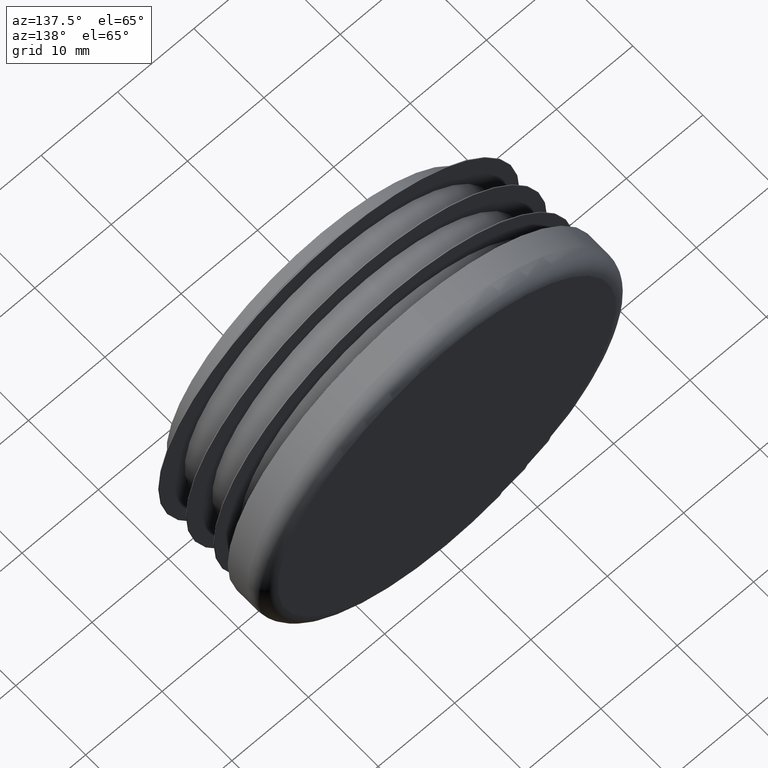
[diagram: clean part render]
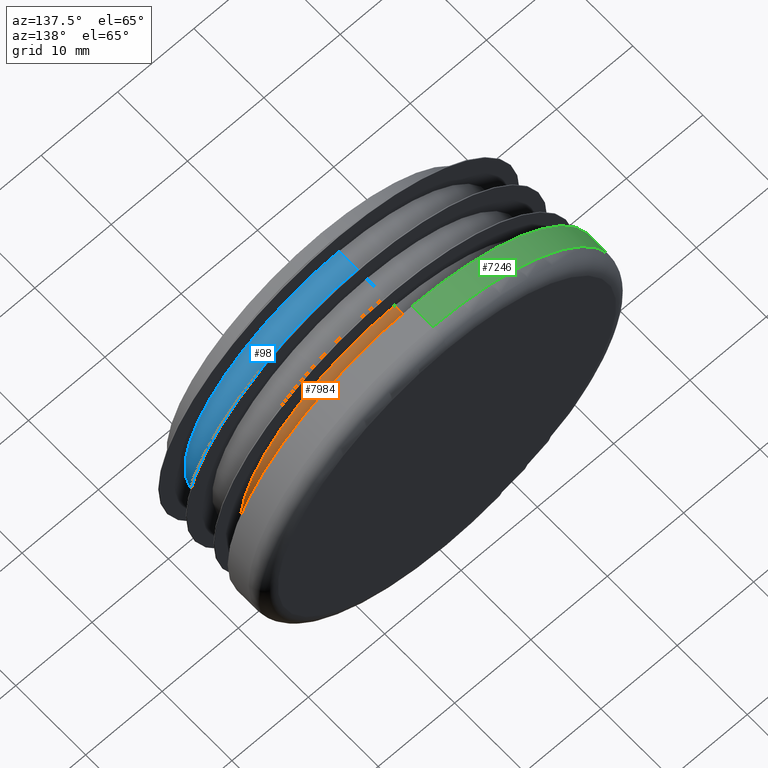
[diagram: same view with three faces highlighted in distinct colors, each labeled with its STEP entity id]
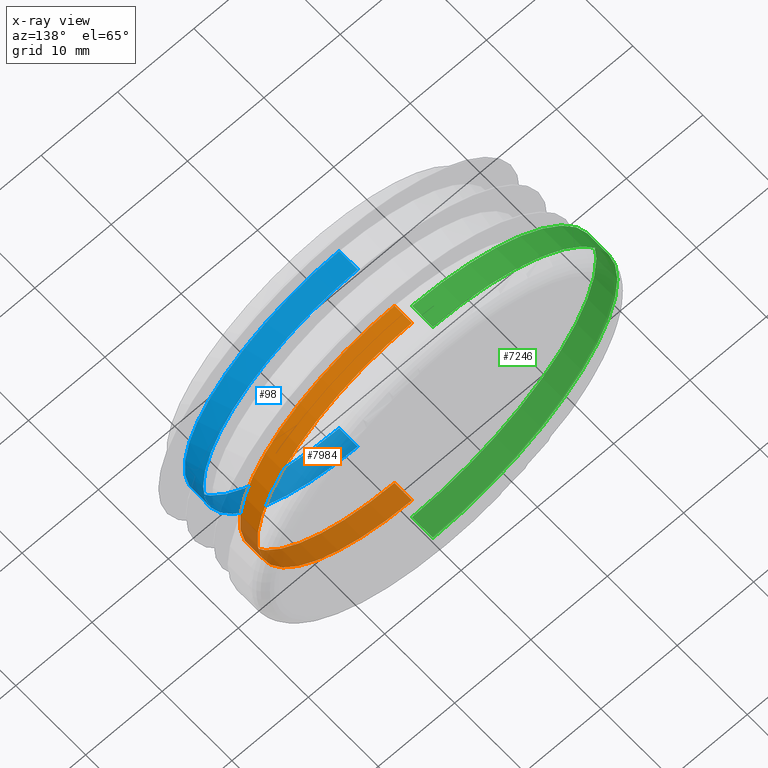
[diagram: x-ray of the same camera — body ghosted, the three highlighted faces saturated]
A machine part, auxiliary view with three faces highlighted in distinct colors.
The next image is the same camera in x-ray (body ghosted, the three faces saturated) — at least one of them is partly hidden behind the body in this view.
Their STEP definitions:

[orange] entity #7984 — the highlighted cylindrical surface (partial cylindrical patch) has radius 20.25 mm, axis along (-0, -1, -0).
#101 = AXIS2_PLACEMENT_3D ( 'NONE', #7416, #2454, #11285 ) ;
#410 = CIRCLE ( 'NONE', #1434, 20.25000000000000355 ) ;
#1434 = AXIS2_PLACEMENT_3D ( 'NONE', #2175, #6080, #6123 ) ;
#1685 = DIRECTION ( 'NONE',  ( 0.000000000000000000, 0.000000000000000000, -1.000000000000000000 ) ) ;
#2175 = CARTESIAN_POINT ( 'NONE',  ( 0.000000000000000000, 10.50000000000024869, 0.000000000000000000 ) ) ;
#2454 = DIRECTION ( 'NONE',  ( -0.000000000000000000, -1.000000000000000000, -0.000000000000000000 ) ) ;
#2685 = ORIENTED_EDGE ( 'NONE', *, *, #8661, .F. ) ;
#2708 = EDGE_CURVE ( 'NONE', #9365, #12247, #7811, .T. ) ;
#3209 = VECTOR ( 'NONE', #10932, 1000.000000000000000 ) ;
#3353 = VERTEX_POINT ( 'NONE', #3434 ) ;
#3434 = CARTESIAN_POINT ( 'NONE',  ( 2.479909768271173995E-15, 10.50000000000024869, 20.25000000000000355 ) ) ;
#4050 = FACE_OUTER_BOUND ( 'NONE', #4310, .T. ) ;
#4086 = ORIENTED_EDGE ( 'NONE', *, *, #2708, .F. ) ;
#4310 = EDGE_LOOP ( 'NONE', ( #10079, #5307, #2685, #4086 ) ) ;
#4395 = CIRCLE ( 'NONE', #101, 20.25000000000000355 ) ;
#4969 = EDGE_CURVE ( 'NONE', #9365, #6703, #4395, .T. ) ;
#5142 = CYLINDRICAL_SURFACE ( 'NONE', #10657, 20.25000000000000355 ) ;
#5307 = ORIENTED_EDGE ( 'NONE', *, *, #11795, .T. ) ;
#6080 = DIRECTION ( 'NONE',  ( 1.047444401652940007E-14, -1.000000000000000000, -0.000000000000000000 ) ) ;
#6123 = DIRECTION ( 'NONE',  ( -1.000000000000000000, -1.045117353428002079E-14, 0.000000000000000000 ) ) ;
#6703 = VERTEX_POINT ( 'NONE', #7364 ) ;
#7364 = CARTESIAN_POINT ( 'NONE',  ( 2.479909768273391089E-15, 12.99999999999999645, 20.25000000000000355 ) ) ;
#7416 = CARTESIAN_POINT ( 'NONE',  ( 0.000000000000000000, 12.99999999999999645, 0.000000000000000000 ) ) ;
#7467 = CARTESIAN_POINT ( 'NONE',  ( 2.479909768273391089E-15, 12.99999999999999467, 20.25000000000000355 ) ) ;
#7538 = DIRECTION ( 'NONE',  ( -0.000000000000000000, -1.000000000000000000, -0.000000000000000000 ) ) ;
#7811 = LINE ( 'NONE', #8003, #3209 ) ;
#7984 = ADVANCED_FACE ( 'NONE', ( #4050 ), #5142, .T. ) ;
#8003 = CARTESIAN_POINT ( 'NONE',  ( 0.000000000000000000, 12.99999999999999467, -20.25000000000000355 ) ) ;
#8661 = EDGE_CURVE ( 'NONE', #12247, #3353, #410, .T. ) ;
#9092 = CARTESIAN_POINT ( 'NONE',  ( -2.216772199859958840E-27, 10.50000000000024869, -20.25000000000000355 ) ) ;
#9365 = VERTEX_POINT ( 'NONE', #11719 ) ;
#9757 = LINE ( 'NONE', #7467, #11856 ) ;
#10079 = ORIENTED_EDGE ( 'NONE', *, *, #4969, .T. ) ;
#10657 = AXIS2_PLACEMENT_3D ( 'NONE', #12428, #7538, #1685 ) ;
#10932 = DIRECTION ( 'NONE',  ( -0.000000000000000000, -1.000000000000000000, -0.000000000000000000 ) ) ;
#11285 = DIRECTION ( 'NONE',  ( 0.000000000000000000, 0.000000000000000000, -1.000000000000000000 ) ) ;
#11719 = CARTESIAN_POINT ( 'NONE',  ( 0.000000000000000000, 12.99999999999999645, -20.25000000000000355 ) ) ;
#11795 = EDGE_CURVE ( 'NONE', #6703, #3353, #9757, .T. ) ;
#11856 = VECTOR ( 'NONE', #12340, 1000.000000000000000 ) ;
#12247 = VERTEX_POINT ( 'NONE', #9092 ) ;
#12340 = DIRECTION ( 'NONE',  ( -0.000000000000000000, -1.000000000000000000, -0.000000000000000000 ) ) ;
#12428 = CARTESIAN_POINT ( 'NONE',  ( 0.000000000000000000, 12.99999999999999467, 0.000000000000000000 ) ) ;

[blue] entity #98 — the highlighted cylindrical surface (partial cylindrical patch) has radius 20.25 mm, axis along (-0, -1, -0).
#35 = CARTESIAN_POINT ( 'NONE',  ( 2.479909768271173995E-15, 2.599999999999786482, 20.25000000000000355 ) ) ;
#92 = CARTESIAN_POINT ( 'NONE',  ( 0.000000000000000000, 12.99999999999999467, 0.000000000000000000 ) ) ;
#98 = ADVANCED_FACE ( 'NONE', ( #1736 ), #4324, .T. ) ;
#348 = CARTESIAN_POINT ( 'NONE',  ( 2.479909768271169262E-15, 5.249999999999983125, 20.25000000000000355 ) ) ;
#457 = VECTOR ( 'NONE', #8158, 1000.000000000000000 ) ;
#696 = EDGE_CURVE ( 'NONE', #11038, #10031, #1100, .T. ) ;
#955 = EDGE_CURVE ( 'NONE', #7314, #1592, #6598, .T. ) ;
#1100 = CIRCLE ( 'NONE', #8448, 20.25000000000000355 ) ;
#1241 = ORIENTED_EDGE ( 'NONE', *, *, #955, .F. ) ;
#1443 = DIRECTION ( 'NONE',  ( -1.000000000000000000, -1.049400621269920216E-14, 0.000000000000000000 ) ) ;
#1592 = VERTEX_POINT ( 'NONE', #35 ) ;
#1736 = FACE_OUTER_BOUND ( 'NONE', #9956, .T. ) ;
#2102 = DIRECTION ( 'NONE',  ( -0.000000000000000000, -1.000000000000000000, -0.000000000000000000 ) ) ;
#2202 = DIRECTION ( 'NONE',  ( 0.000000000000000000, 0.000000000000000000, -1.000000000000000000 ) ) ;
#2232 = CARTESIAN_POINT ( 'NONE',  ( -5.499083108677917680E-14, 5.249999999999983125, 0.000000000000000000 ) ) ;
#2321 = VECTOR ( 'NONE', #9738, 1000.000000000000000 ) ;
#2602 = EDGE_CURVE ( 'NONE', #10031, #7314, #3961, .T. ) ;
#3898 = EDGE_CURVE ( 'NONE', #4237, #1592, #5022, .T. ) ;
#3912 = CARTESIAN_POINT ( 'NONE',  ( 20.24999999999995026, 5.250000000000195399, 2.686068203623716789E-15 ) ) ;
#3961 = LINE ( 'NONE', #11628, #2321 ) ;
#4237 = VERTEX_POINT ( 'NONE', #348 ) ;
#4324 = CYLINDRICAL_SURFACE ( 'NONE', #12563, 20.25000000000000355 ) ;
#5022 = LINE ( 'NONE', #7174, #457 ) ;
#5613 = ORIENTED_EDGE ( 'NONE', *, *, #2602, .F. ) ;
#5932 = ORIENTED_EDGE ( 'NONE', *, *, #3898, .T. ) ;
#6066 = DIRECTION ( 'NONE',  ( -1.000000000000000000, -1.047258987348961069E-14, 0.000000000000000000 ) ) ;
#6295 = CARTESIAN_POINT ( 'NONE',  ( -2.224834271756134857E-27, 5.249999999999983125, -20.25000000000000355 ) ) ;
#6598 = CIRCLE ( 'NONE', #11604, 20.25000000000000355 ) ;
#7019 = CARTESIAN_POINT ( 'NONE',  ( 0.000000000000000000, 2.599999999999786482, 0.000000000000000000 ) ) ;
#7174 = CARTESIAN_POINT ( 'NONE',  ( 2.479909768273391089E-15, 12.99999999999999467, 20.25000000000000355 ) ) ;
#7256 = AXIS2_PLACEMENT_3D ( 'NONE', #2232, #9072, #8119 ) ;
#7314 = VERTEX_POINT ( 'NONE', #11203 ) ;
#7341 = CARTESIAN_POINT ( 'NONE',  ( -5.499083108677917680E-14, 5.249999999999983125, 0.000000000000000000 ) ) ;
#8119 = DIRECTION ( 'NONE',  ( -1.000000000000000000, -1.049400621269920216E-14, 0.000000000000000000 ) ) ;
#8158 = DIRECTION ( 'NONE',  ( -0.000000000000000000, -1.000000000000000000, -0.000000000000000000 ) ) ;
#8244 = DIRECTION ( 'NONE',  ( -1.047444401652940007E-14, 1.000000000000000000, 0.000000000000000000 ) ) ;
#8448 = AXIS2_PLACEMENT_3D ( 'NONE', #7341, #8244, #1443 ) ;
#8769 = ORIENTED_EDGE ( 'NONE', *, *, #9619, .F. ) ;
#9072 = DIRECTION ( 'NONE',  ( -1.047444401652940007E-14, 1.000000000000000000, 0.000000000000000000 ) ) ;
#9619 = EDGE_CURVE ( 'NONE', #4237, #11038, #10185, .T. ) ;
#9738 = DIRECTION ( 'NONE',  ( -0.000000000000000000, -1.000000000000000000, -0.000000000000000000 ) ) ;
#9956 = EDGE_LOOP ( 'NONE', ( #8769, #5932, #1241, #5613, #12404 ) ) ;
#10031 = VERTEX_POINT ( 'NONE', #6295 ) ;
#10063 = DIRECTION ( 'NONE',  ( 1.047444401652940007E-14, -1.000000000000000000, -0.000000000000000000 ) ) ;
#10185 = CIRCLE ( 'NONE', #7256, 20.25000000000000355 ) ;
#11038 = VERTEX_POINT ( 'NONE', #3912 ) ;
#11203 = CARTESIAN_POINT ( 'NONE',  ( -2.216772199859958840E-27, 2.599999999999786482, -20.25000000000000355 ) ) ;
#11604 = AXIS2_PLACEMENT_3D ( 'NONE', #7019, #10063, #6066 ) ;
#11628 = CARTESIAN_POINT ( 'NONE',  ( 0.000000000000000000, 12.99999999999999467, -20.25000000000000355 ) ) ;
#12404 = ORIENTED_EDGE ( 'NONE', *, *, #696, .F. ) ;
#12563 = AXIS2_PLACEMENT_3D ( 'NONE', #92, #2102, #2202 ) ;

[green] entity #7246 — the highlighted cylindrical surface (partial cylindrical patch) has radius 24.15 mm, axis along (-0, -1, -0).
#135 = DIRECTION ( 'NONE',  ( -0.000000000000000000, -1.000000000000000000, -0.000000000000000000 ) ) ;
#158 = EDGE_LOOP ( 'NONE', ( #5955, #10721, #3006, #9339 ) ) ;
#303 = DIRECTION ( 'NONE',  ( -0.000000000000000000, -1.000000000000000000, -0.000000000000000000 ) ) ;
#839 = AXIS2_PLACEMENT_3D ( 'NONE', #1042, #7921, #10695 ) ;
#1042 = CARTESIAN_POINT ( 'NONE',  ( 0.000000000000000000, 12.99999999999999467, 0.000000000000000000 ) ) ;
#1505 = CIRCLE ( 'NONE', #6151, 24.14999999999999503 ) ;
#1783 = CYLINDRICAL_SURFACE ( 'NONE', #839, 24.14999999999999503 ) ;
#1988 = DIRECTION ( 'NONE',  ( -0.000000000000000000, -1.000000000000000000, -0.000000000000000000 ) ) ;
#2212 = CARTESIAN_POINT ( 'NONE',  ( 0.000000000000000000, 12.99999999999999645, 0.000000000000000000 ) ) ;
#2296 = CIRCLE ( 'NONE', #8403, 24.14999999999999503 ) ;
#3006 = ORIENTED_EDGE ( 'NONE', *, *, #4858, .T. ) ;
#3198 = VERTEX_POINT ( 'NONE', #5984 ) ;
#3352 = CARTESIAN_POINT ( 'NONE',  ( 0.000000000000000000, 12.99999999999999645, -24.14999999999999503 ) ) ;
#3908 = FACE_OUTER_BOUND ( 'NONE', #158, .T. ) ;
#3988 = CARTESIAN_POINT ( 'NONE',  ( 2.957522019940857536E-15, 12.99999999999999467, 24.14999999999999503 ) ) ;
#4073 = LINE ( 'NONE', #11765, #7917 ) ;
#4219 = DIRECTION ( 'NONE',  ( 0.000000000000000000, 0.000000000000000000, -1.000000000000000000 ) ) ;
#4595 = DIRECTION ( 'NONE',  ( 0.000000000000000000, 0.000000000000000000, 1.000000000000000000 ) ) ;
#4858 = EDGE_CURVE ( 'NONE', #10934, #7329, #4073, .T. ) ;
#5156 = CARTESIAN_POINT ( 'NONE',  ( 2.957522019940857536E-15, 12.99999999999999645, 24.14999999999999503 ) ) ;
#5955 = ORIENTED_EDGE ( 'NONE', *, *, #10214, .F. ) ;
#5984 = CARTESIAN_POINT ( 'NONE',  ( 2.957522019940857536E-15, 15.99999999999999289, 24.14999999999999503 ) ) ;
#6017 = EDGE_CURVE ( 'NONE', #3198, #10934, #1505, .T. ) ;
#6151 = AXIS2_PLACEMENT_3D ( 'NONE', #10834, #135, #4595 ) ;
#7246 = ADVANCED_FACE ( 'NONE', ( #3908 ), #1783, .T. ) ;
#7329 = VERTEX_POINT ( 'NONE', #3352 ) ;
#7917 = VECTOR ( 'NONE', #1988, 1000.000000000000000 ) ;
#7921 = DIRECTION ( 'NONE',  ( -0.000000000000000000, -1.000000000000000000, -0.000000000000000000 ) ) ;
#8343 = VECTOR ( 'NONE', #303, 1000.000000000000000 ) ;
#8403 = AXIS2_PLACEMENT_3D ( 'NONE', #2212, #11904, #4219 ) ;
#9211 = CARTESIAN_POINT ( 'NONE',  ( 0.000000000000000000, 15.99999999999999289, -24.14999999999999503 ) ) ;
#9339 = ORIENTED_EDGE ( 'NONE', *, *, #10822, .F. ) ;
#10214 = EDGE_CURVE ( 'NONE', #3198, #11712, #10917, .T. ) ;
#10695 = DIRECTION ( 'NONE',  ( 0.000000000000000000, 0.000000000000000000, -1.000000000000000000 ) ) ;
#10721 = ORIENTED_EDGE ( 'NONE', *, *, #6017, .T. ) ;
#10822 = EDGE_CURVE ( 'NONE', #11712, #7329, #2296, .T. ) ;
#10834 = CARTESIAN_POINT ( 'NONE',  ( 0.000000000000000000, 15.99999999999999289, 0.000000000000000000 ) ) ;
#10917 = LINE ( 'NONE', #3988, #8343 ) ;
#10934 = VERTEX_POINT ( 'NONE', #9211 ) ;
#11712 = VERTEX_POINT ( 'NONE', #5156 ) ;
#11765 = CARTESIAN_POINT ( 'NONE',  ( 0.000000000000000000, 12.99999999999999467, -24.14999999999999503 ) ) ;
#11904 = DIRECTION ( 'NONE',  ( -0.000000000000000000, -1.000000000000000000, -0.000000000000000000 ) ) ;